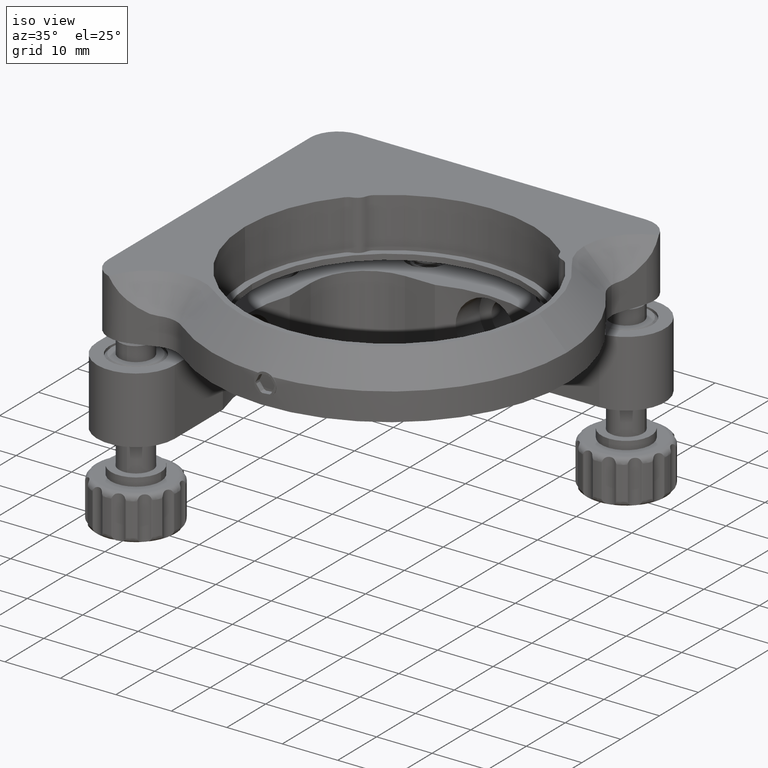
[diagram: clean part render]
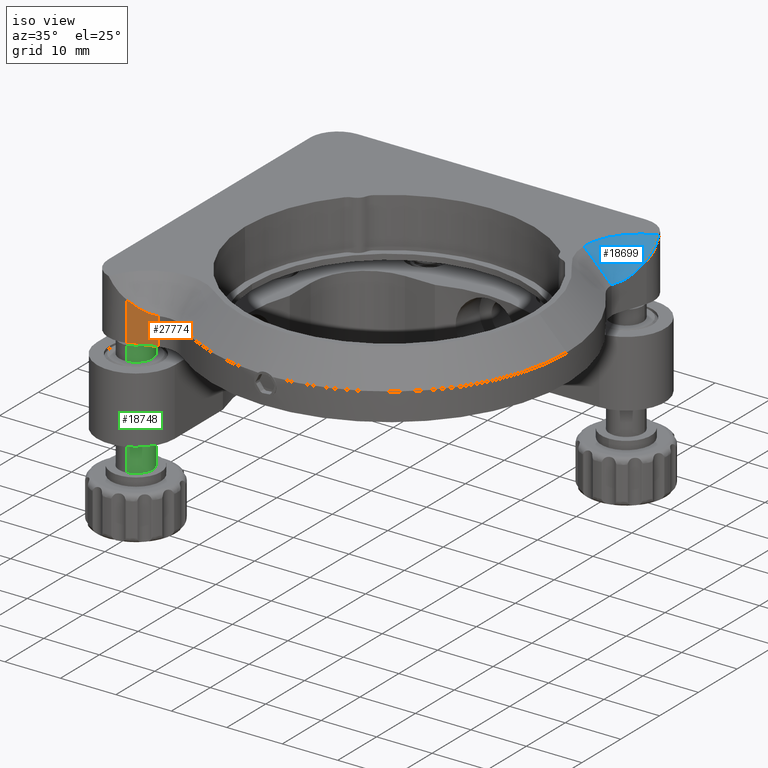
[diagram: same view with three faces highlighted in distinct colors, each labeled with its STEP entity id]
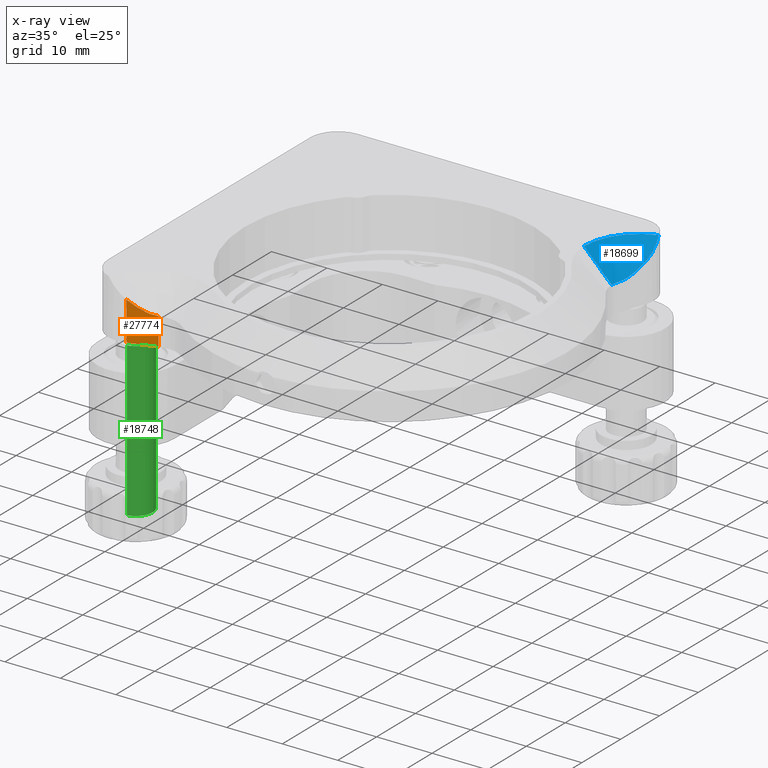
[diagram: x-ray of the same camera — body ghosted, the three highlighted faces saturated]
A machine part, iso view with three faces highlighted in distinct colors.
The next image is the same camera in x-ray (body ghosted, the three faces saturated) — at least one of them is partly hidden behind the body in this view.
Their STEP definitions:

[orange] entity #27774 — the highlighted planar face has unit normal (-0.3201, 0.9474, 0).
#1029 = ORIENTED_EDGE ( 'NONE', *, *, #14035, .T. ) ;
#2240 = LINE ( 'NONE', #7852, #24999 ) ;
#2287 = CARTESIAN_POINT ( 'NONE',  ( 4.596182747521622147, -55.72578785341517005, 5.304773322691723081 ) ) ;
#2783 = EDGE_CURVE ( 'NONE', #6437, #24167, #20857, .T. ) ;
#3295 = CARTESIAN_POINT ( 'NONE',  ( 3.412689686452225590, -56.12564660272109052, 5.836463065857626198 ) ) ;
#5322 = CARTESIAN_POINT ( 'NONE',  ( 1.600437648754138076, -56.73793987004811612, 3.033164207070440584E-15 ) ) ;
#5852 = CARTESIAN_POINT ( 'NONE',  ( 5.426852551836481631, -55.44513509763186931, 5.063787605655678092 ) ) ;
#5859 = ORIENTED_EDGE ( 'NONE', *, *, #23085, .F. ) ;
#6437 = VERTEX_POINT ( 'NONE', #21384 ) ;
#7852 = CARTESIAN_POINT ( 'NONE',  ( 1.600437648754138076, -56.73793987004811612, 3.033164207070440584E-15 ) ) ;
#7906 = CARTESIAN_POINT ( 'NONE',  ( 4.191877607223854163, -55.86238768070212757, 5.463035022545933650 ) ) ;
#8558 = CARTESIAN_POINT ( 'NONE',  ( 4.803084303807525046, -55.65588343213264721, 5.234862595525001439 ) ) ;
#9199 = VERTEX_POINT ( 'NONE', #31723 ) ;
#9751 = EDGE_CURVE ( 'NONE', #9199, #27385, #23598, .T. ) ;
#9796 = CARTESIAN_POINT ( 'NONE',  ( 6.285587990873471753, -55.15499999677395238, 1.975037924942645692E-15 ) ) ;
#9808 = DIRECTION ( 'NONE',  ( -0.3200875297508289918, 0.9473879740095987323, 9.734583631587861674E-18 ) ) ;
#10441 = DIRECTION ( 'NONE',  ( -1.772866405933790834E-16, -8.922568092179399976E-17, 1.000000000000000000 ) ) ;
#10663 = CARTESIAN_POINT ( 'NONE',  ( 3.038979746246685210, -56.25190943789035458, 6.053897754134207609 ) ) ;
#13226 = CARTESIAN_POINT ( 'NONE',  ( 1.951745298620935598, -56.61924594431405922, 6.771757543636923060 ) ) ;
#13408 = CARTESIAN_POINT ( 'NONE',  ( 6.285587990873471753, -55.15499999677395238, 4.999999999999986677 ) ) ;
#14035 = EDGE_CURVE ( 'NONE', #9199, #6437, #15120, .T. ) ;
#14513 = EDGE_LOOP ( 'NONE', ( #1029, #18840, #5859, #25740 ) ) ;
#15120 = LINE ( 'NONE', #9796, #26501 ) ;
#15152 = DIRECTION ( 'NONE',  ( -0.9473879740095987323, -0.3200875297508290473, 2.139645564112032802E-16 ) ) ;
#15679 = PLANE ( 'NONE',  #16046 ) ;
#15852 = FACE_OUTER_BOUND ( 'NONE', #14513, .T. ) ;
#16046 = AXIS2_PLACEMENT_3D ( 'NONE', #18790, #9808, #21356 ) ;
#16243 = VECTOR ( 'NONE', #15152, 999.9999999999998863 ) ;
#18790 = CARTESIAN_POINT ( 'NONE',  ( 1.600437648754138742, -56.73793987004811612, 3.033164207070439795E-15 ) ) ;
#18840 = ORIENTED_EDGE ( 'NONE', *, *, #2783, .T. ) ;
#18927 = CARTESIAN_POINT ( 'NONE',  ( 1.600437648754137410, -56.73793987004811612, 7.032519631729585718 ) ) ;
#20841 = CARTESIAN_POINT ( 'NONE',  ( 1.600437648754138742, -56.73793987004811612, 3.033164207070439795E-15 ) ) ;
#20857 = B_SPLINE_CURVE_WITH_KNOTS ( 'NONE', 3,
 ( #13408, #21668, #5852, #8558, #2287, #7906, #32674, #3295, #10663, #30300, #13226, #18927 ),
 .UNSPECIFIED., .F., .F.,
 ( 4, 2, 2, 2, 2, 4 ),
 ( 8.673617379884034509E-19, 0.001355948262144427742, 0.002033922393216636842, 0.002711896524288845943, 0.004067844786433271950, 0.005423793048577697958 ),
 .UNSPECIFIED. ) ;
#21356 = DIRECTION ( 'NONE',  ( -0.9473879740095987323, -0.3200875297508289918, 2.139645564112032555E-16 ) ) ;
#21384 = CARTESIAN_POINT ( 'NONE',  ( 6.285587990873471753, -55.15499999677395238, 4.999999999999986677 ) ) ;
#21668 = CARTESIAN_POINT ( 'NONE',  ( 5.850970818540396579, -55.30184114411363794, 4.999999999999992895 ) ) ;
#23085 = EDGE_CURVE ( 'NONE', #27385, #24167, #2240, .T. ) ;
#23598 = LINE ( 'NONE', #20841, #16243 ) ;
#24167 = VERTEX_POINT ( 'NONE', #32630 ) ;
#24999 = VECTOR ( 'NONE', #10441, 1000.000000000000000 ) ;
#25740 = ORIENTED_EDGE ( 'NONE', *, *, #9751, .F. ) ;
#26501 = VECTOR ( 'NONE', #34749, 1000.000000000000000 ) ;
#27385 = VERTEX_POINT ( 'NONE', #5322 ) ;
#27774 = ADVANCED_FACE ( 'NONE', ( #15852 ), #15679, .F. ) ;
#30300 = CARTESIAN_POINT ( 'NONE',  ( 2.308454058568644385, -56.49872718226041712, 6.521441532815284603 ) ) ;
#31723 = CARTESIAN_POINT ( 'NONE',  ( 6.285587990873471753, -55.15499999677395238, 1.975037924942645692E-15 ) ) ;
#32630 = CARTESIAN_POINT ( 'NONE',  ( 1.600437648754137410, -56.73793987004811612, 7.032519631729585718 ) ) ;
#32674 = CARTESIAN_POINT ( 'NONE',  ( 3.994401168179725126, -55.92910770174071899, 5.551209796058738988 ) ) ;
#34749 = DIRECTION ( 'NONE',  ( -1.772866405933790834E-16, -8.922568092179399976E-17, 1.000000000000000000 ) ) ;

[blue] entity #18699 — the highlighted conical surface has half-angle 45 deg.
#491 = DIRECTION ( 'NONE',  ( -1.000000000000000000, -6.938893903907232322E-16, 1.734723475976808080E-16 ) ) ;
#530 = CARTESIAN_POINT ( 'NONE',  ( 55.15454799659872975, -6.285840206482286696, 4.999999999999997335 ) ) ;
#2065 = VERTEX_POINT ( 'NONE', #20556 ) ;
#2254 = CARTESIAN_POINT ( 'NONE',  ( 54.89168196034184177, -7.885703266106932396, 4.999999999999997335 ) ) ;
#2349 = EDGE_CURVE ( 'NONE', #2065, #27431, #2603, .T. ) ;
#2603 = LINE ( 'NONE', #2254, #20315 ) ;
#3035 = FACE_OUTER_BOUND ( 'NONE', #35652, .T. ) ;
#3249 = CARTESIAN_POINT ( 'NONE',  ( 55.30150879263575092, -5.850694851973648802, 5.016017367602295884 ) ) ;
#4133 = DIRECTION ( 'NONE',  ( -1.772866405933790834E-16, -8.922568092179399976E-17, 1.000000000000000000 ) ) ;
#5057 = CARTESIAN_POINT ( 'NONE',  ( 56.73713396374310491, -1.599863059624606620, 7.032990840622125539 ) ) ;
#5985 = CARTESIAN_POINT ( 'NONE',  ( 55.22833985912166810, -6.067345294619473250, 4.999999999999999112 ) ) ;
#6285 = ORIENTED_EDGE ( 'NONE', *, *, #2349, .F. ) ;
#6347 = CARTESIAN_POINT ( 'NONE',  ( 56.73713396374310491, -1.599863059624606620, 7.032990840622125539 ) ) ;
#6713 = CARTESIAN_POINT ( 'NONE',  ( 55.73198533826628420, -4.576070094164899515, 5.298450878853953050 ) ) ;
#7043 = EDGE_CURVE ( 'NONE', #22040, #2065, #12357, .T. ) ;
#7751 = CARTESIAN_POINT ( 'NONE',  ( 59.89168196034183467, -7.885703266106928844, 4.999999999999996447 ) ) ;
#8027 = VERTEX_POINT ( 'NONE', #24153 ) ;
#8160 = EDGE_CURVE ( 'NONE', #8027, #22337, #16100, .T. ) ;
#8324 = DIRECTION ( 'NONE',  ( -1.000000000000000000, -6.938893903907237252E-16, 1.734723475976809313E-16 ) ) ;
#8492 = CARTESIAN_POINT ( 'NONE',  ( 56.90070856473604977, -1.030752608654714964, 7.477638350981265170 ) ) ;
#10531 = CIRCLE ( 'NONE', #24589, 9.999999999999987566 ) ;
#10723 = CARTESIAN_POINT ( 'NONE',  ( 56.73713396374310491, -1.599863059624606620, 7.032990840622125539 ) ) ;
#11180 = ORIENTED_EDGE ( 'NONE', *, *, #29908, .F. ) ;
#11462 = CARTESIAN_POINT ( 'NONE',  ( 56.61858802887859099, -1.950873085721547495, 6.772442499935720228 ) ) ;
#11464 = ORIENTED_EDGE ( 'NONE', *, *, #27649, .F. ) ;
#12357 = CIRCLE ( 'NONE', #24610, 4.999999999999997335 ) ;
#14348 = CARTESIAN_POINT ( 'NONE',  ( 59.89168196034183467, -7.885703266106928844, 4.999999999999996447 ) ) ;
#15300 = DIRECTION ( 'NONE',  ( -1.000000000000000000, -6.938893903907232322E-16, 1.734723475976808080E-16 ) ) ;
#16100 = B_SPLINE_CURVE_WITH_KNOTS ( 'NONE', 3,
 ( #16227, #16568, #22277, #16396, #36025, #8492, #27572, #10723 ),
 .UNSPECIFIED., .F., .F.,
 ( 4, 2, 2, 4 ),
 ( 2.168404344971008627E-19, 0.002190389433444471772, 0.003285584150166706140, 0.004380778866888940075 ),
 .UNSPECIFIED. ) ;
#16227 = CARTESIAN_POINT ( 'NONE',  ( 56.73596684410139801, 1.603314707589376775, 9.999999999999992895 ) ) ;
#16396 = CARTESIAN_POINT ( 'NONE',  ( 57.00298963252707551, -0.2020092460481348606, 8.208288718484524793 ) ) ;
#16449 = B_SPLINE_CURVE_WITH_KNOTS ( 'NONE', 3,
 ( #6347, #11462, #25604, #17338, #34211, #17892, #6713, #28902, #26144, #3249, #5985, #530 ),
 .UNSPECIFIED., .F., .F.,
 ( 4, 2, 2, 2, 2, 4 ),
 ( 0.000000000000000000, 0.001344829790303084770, 0.002689659580606169539, 0.004034489370909254309, 0.004706904266060795393, 0.005379319161212336477 ),
 .UNSPECIFIED. ) ;
#16568 = CARTESIAN_POINT ( 'NONE',  ( 56.90387317106939236, 1.107342960014747746, 9.476385063869347647 ) ) ;
#17338 = CARTESIAN_POINT ( 'NONE',  ( 56.25233527107064901, -3.035333638697651715, 6.056199592029960499 ) ) ;
#17518 = CARTESIAN_POINT ( 'NONE',  ( 55.15454799659872975, -6.285840206482286696, 4.999999999999997335 ) ) ;
#17892 = CARTESIAN_POINT ( 'NONE',  ( 55.86646212374179044, -4.177889422401361408, 5.460844165139486783 ) ) ;
#18699 = ADVANCED_FACE ( 'NONE', ( #3035 ), #19037, .F. ) ;
#19037 = CONICAL_SURFACE ( 'NONE', #20179, 4.999999999999997335, 0.7853981633974482790 ) ;
#20179 = AXIS2_PLACEMENT_3D ( 'NONE', #14348, #25565, #491 ) ;
#20315 = VECTOR ( 'NONE', #36106, 1000.000000000000114 ) ;
#20556 = CARTESIAN_POINT ( 'NONE',  ( 54.89168196034184177, -7.885703266106932396, 4.999999999999995559 ) ) ;
#22040 = VERTEX_POINT ( 'NONE', #17518 ) ;
#22277 = CARTESIAN_POINT ( 'NONE',  ( 56.99279617421069588, 0.5956831015202690427, 8.961399423491533511 ) ) ;
#22282 = DIRECTION ( 'NONE',  ( 1.772866405933790834E-16, 8.922568092179399976E-17, -1.000000000000000000 ) ) ;
#22337 = VERTEX_POINT ( 'NONE', #5057 ) ;
#24153 = CARTESIAN_POINT ( 'NONE',  ( 56.73596684410139801, 1.603314707589376775, 9.999999999999992895 ) ) ;
#24589 = AXIS2_PLACEMENT_3D ( 'NONE', #30364, #22282, #8324 ) ;
#24610 = AXIS2_PLACEMENT_3D ( 'NONE', #7751, #4133, #15300 ) ;
#25565 = DIRECTION ( 'NONE',  ( -1.772866405933790834E-16, -8.922568092179399976E-17, 1.000000000000000000 ) ) ;
#25604 = CARTESIAN_POINT ( 'NONE',  ( 56.49831444028630756, -2.306998629113649724, 6.522538785187744104 ) ) ;
#26144 = CARTESIAN_POINT ( 'NONE',  ( 55.44669335164302737, -5.420808868078342613, 5.077707100834040865 ) ) ;
#27431 = VERTEX_POINT ( 'NONE', #27644 ) ;
#27572 = CARTESIAN_POINT ( 'NONE',  ( 56.83436187879492962, -1.311974883292839289, 7.246684983437753580 ) ) ;
#27644 = CARTESIAN_POINT ( 'NONE',  ( 49.89168196034184177, -7.885703266106935949, 9.999999999999991118 ) ) ;
#27649 = EDGE_CURVE ( 'NONE', #22337, #22040, #16449, .T. ) ;
#28902 = CARTESIAN_POINT ( 'NONE',  ( 55.51909817945998782, -5.206420913479840706, 5.123695087015224914 ) ) ;
#29487 = ORIENTED_EDGE ( 'NONE', *, *, #7043, .F. ) ;
#29908 = EDGE_CURVE ( 'NONE', #27431, #8027, #10531, .T. ) ;
#30364 = CARTESIAN_POINT ( 'NONE',  ( 59.89168196034183467, -7.885703266106928844, 9.999999999999992895 ) ) ;
#32417 = ORIENTED_EDGE ( 'NONE', *, *, #8160, .F. ) ;
#34211 = CARTESIAN_POINT ( 'NONE',  ( 56.12666011513119457, -3.407453018552082380, 5.839576657433578788 ) ) ;
#35652 = EDGE_LOOP ( 'NONE', ( #6285, #29487, #11464, #32417, #11180 ) ) ;
#36025 = CARTESIAN_POINT ( 'NONE',  ( 56.98548666565268661, -0.4736223002827156803, 7.960133181897564469 ) ) ;
#36106 = DIRECTION ( 'NONE',  ( -0.7071067811865474617, -5.929982888415619852E-16, 0.7071067811865474617 ) ) ;

[green] entity #18748 — the highlighted cylindrical surface (edge-blend (fillet) strip) has radius 3 mm, axis along (-0, 0, 1).
#1281 = CARTESIAN_POINT ( 'NONE',  ( -1.614709733576579606E-13, -52.00099999999980582, -29.09999999999885745 ) ) ;
#4440 = CYLINDRICAL_SURFACE ( 'NONE', #17262, 3.000000000000020872 ) ;
#4793 = DIRECTION ( 'NONE',  ( 0.1525717749156221825, -0.9882923927153829391, -2.312964634635726884E-15 ) ) ;
#6404 = VERTEX_POINT ( 'NONE', #19932 ) ;
#6825 = EDGE_CURVE ( 'NONE', #9087, #32708, #31822, .T. ) ;
#6921 = DIRECTION ( 'NONE',  ( 0.1525717749156221825, -0.9882923927153829391, -2.312964634635726884E-15 ) ) ;
#8106 = CIRCLE ( 'NONE', #20432, 3.000000000000020872 ) ;
#8784 = EDGE_LOOP ( 'NONE', ( #34062, #36215, #35236, #20358 ) ) ;
#9087 = VERTEX_POINT ( 'NONE', #22718 ) ;
#10038 = VERTEX_POINT ( 'NONE', #32779 ) ;
#12833 = DIRECTION ( 'NONE',  ( -1.651708672726765576E-15, 9.672919826645248539E-16, 1.000000000000000000 ) ) ;
#13555 = AXIS2_PLACEMENT_3D ( 'NONE', #1281, #28733, #6921 ) ;
#14689 = VECTOR ( 'NONE', #29077, 1000.000000000000000 ) ;
#14905 = CARTESIAN_POINT ( 'NONE',  ( 0.4577153247466334007, -54.96587717814597340, -1.399999999999125722 ) ) ;
#15238 = DIRECTION ( 'NONE',  ( -1.651708672726765576E-15, 9.672919826645248539E-16, 1.000000000000000000 ) ) ;
#16252 = CARTESIAN_POINT ( 'NONE',  ( -1.758371745124777213E-13, -52.00099999999982003, -1.399999999999129274 ) ) ;
#16412 = DIRECTION ( 'NONE',  ( -0.1525717749156221825, 0.9882923927153829391, 2.818925648462291807E-15 ) ) ;
#17262 = AXIS2_PLACEMENT_3D ( 'NONE', #29890, #12833, #4793 ) ;
#18358 = FACE_OUTER_BOUND ( 'NONE', #8784, .T. ) ;
#18748 = ADVANCED_FACE ( 'NONE', ( #18358 ), #4440, .T. ) ;
#18841 = CIRCLE ( 'NONE', #13555, 3.000000000000020872 ) ;
#19932 = CARTESIAN_POINT ( 'NONE',  ( -0.4577153247471012487, -49.03612282185366666, -29.09999999999886100 ) ) ;
#20358 = ORIENTED_EDGE ( 'NONE', *, *, #6825, .F. ) ;
#20432 = AXIS2_PLACEMENT_3D ( 'NONE', #16252, #27428, #16412 ) ;
#22718 = CARTESIAN_POINT ( 'NONE',  ( 0.4577153247467082853, -54.96587717814597340, -29.09999999999886455 ) ) ;
#26427 = VECTOR ( 'NONE', #15238, 1000.000000000000000 ) ;
#26613 = CARTESIAN_POINT ( 'NONE',  ( -0.4577153247471732467, -49.03612282185365245, 30.53911735205646139 ) ) ;
#27428 = DIRECTION ( 'NONE',  ( 1.651708672726765576E-15, -9.672919826645248539E-16, -1.000000000000000000 ) ) ;
#28733 = DIRECTION ( 'NONE',  ( -1.651708672726765576E-15, 9.672919826645248539E-16, 1.000000000000000000 ) ) ;
#28986 = EDGE_CURVE ( 'NONE', #10038, #32708, #8106, .T. ) ;
#29077 = DIRECTION ( 'NONE',  ( -1.651708672726765576E-15, 9.672919826645248539E-16, 1.000000000000000000 ) ) ;
#29890 = CARTESIAN_POINT ( 'NONE',  ( -3.038001070935052509E-13, -52.00099999999982003, 30.53911735205645428 ) ) ;
#31453 = CARTESIAN_POINT ( 'NONE',  ( 0.4577153247465660102, -54.96587717814598761, 30.53911735205644717 ) ) ;
#31822 = LINE ( 'NONE', #31453, #14689 ) ;
#31943 = LINE ( 'NONE', #26613, #26427 ) ;
#32708 = VERTEX_POINT ( 'NONE', #14905 ) ;
#32779 = CARTESIAN_POINT ( 'NONE',  ( -0.4577153247470995834, -49.03612282185367377, -1.399999999999133049 ) ) ;
#34062 = ORIENTED_EDGE ( 'NONE', *, *, #35997, .T. ) ;
#34139 = EDGE_CURVE ( 'NONE', #6404, #10038, #31943, .T. ) ;
#35236 = ORIENTED_EDGE ( 'NONE', *, *, #28986, .T. ) ;
#35997 = EDGE_CURVE ( 'NONE', #9087, #6404, #18841, .T. ) ;
#36215 = ORIENTED_EDGE ( 'NONE', *, *, #34139, .T. ) ;